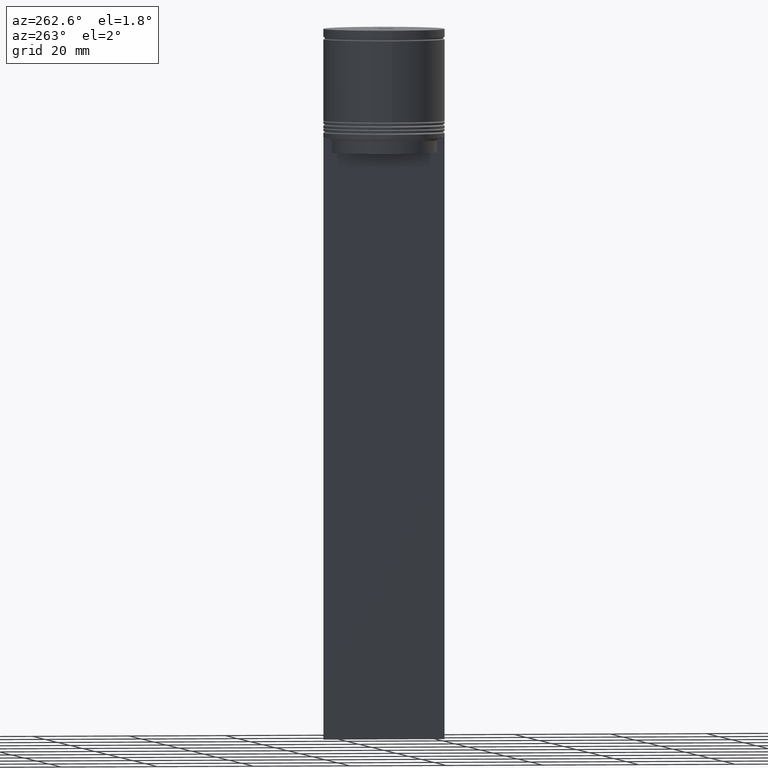
[diagram: clean part render]
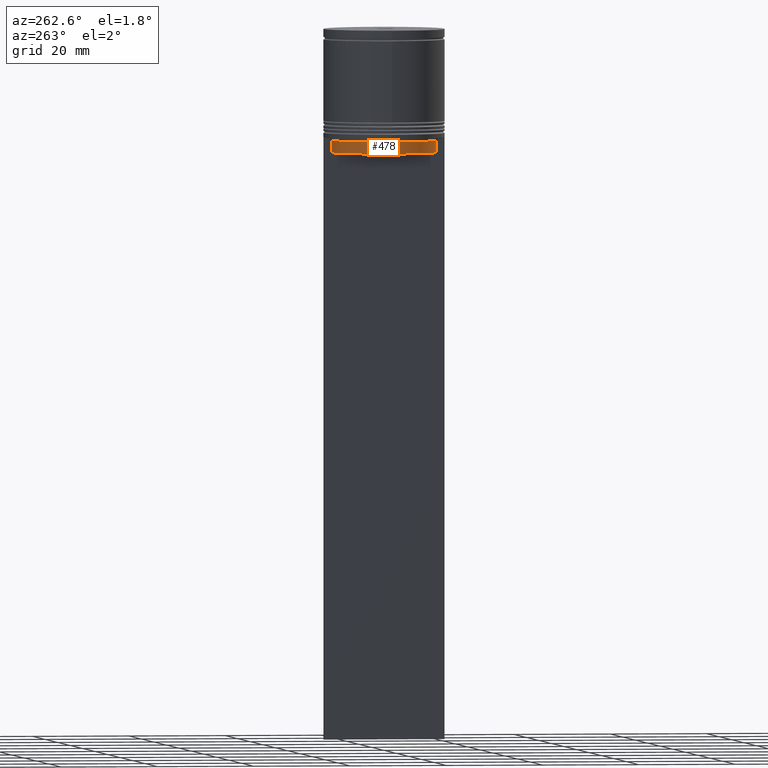
[diagram: same view with one face highlighted and labeled with its STEP entity id]
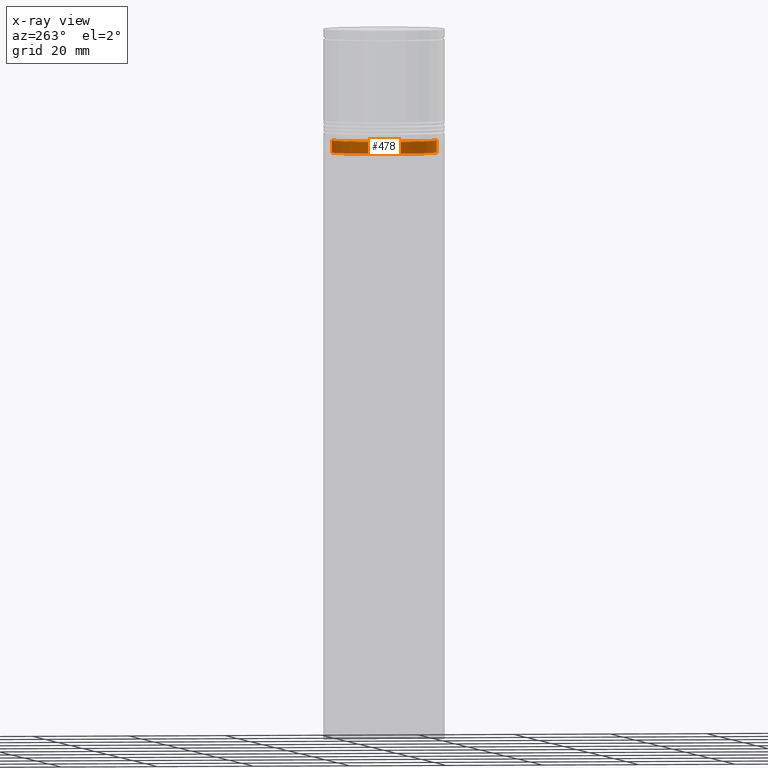
[diagram: x-ray of the same camera — body ghosted, the highlighted face saturated]
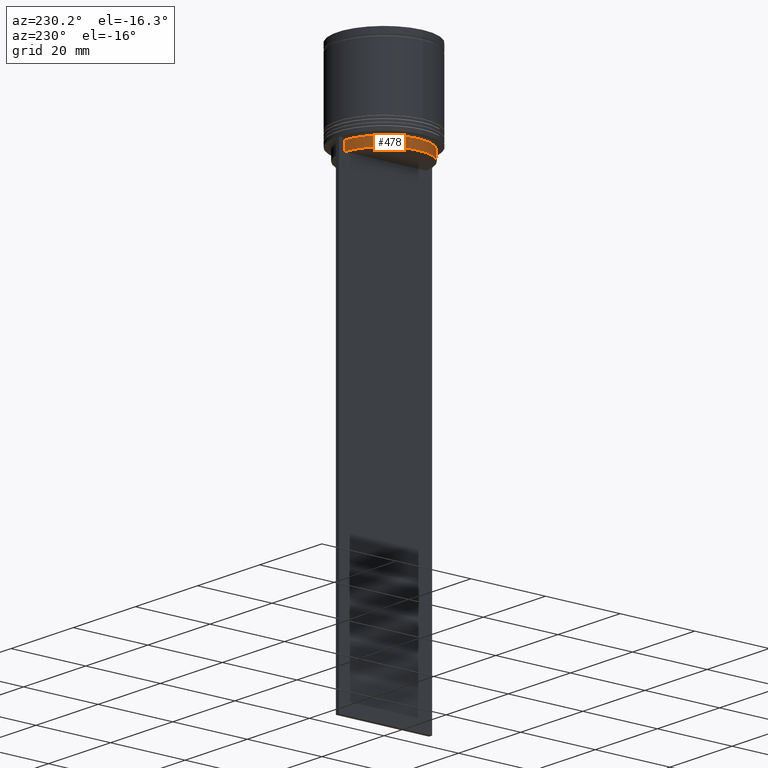
[diagram: same view with one face highlighted and labeled with its STEP entity id]
A machine part, auxiliary view. The second image highlights one B-rep face of the part: STEP entity #478.
The next image is the same camera in x-ray: the body ghosted, the highlighted face saturated — about 0% of this face is hidden behind the body in this view.
A second angle (auxiliary view) of the same face is appended — the face is thin or edge-on in the first view.
In plain terms, the highlighted cylindrical surface (partial cylindrical patch) has radius 10.9 mm, axis along (-0, -0, 1).
Its self-contained STEP definition (entity closure, byte-faithful):
#3 = FACE_OUTER_BOUND ( 'NONE', #2027, .T. ) ;
#8 = VERTEX_POINT ( 'NONE', #781 ) ;
#16 = VECTOR ( 'NONE', #1438, 1000.000000000000000 ) ;
#105 = DIRECTION ( 'NONE',  ( 1.000000000000000000, 0.000000000000000000, 0.000000000000000000 ) ) ;
#169 = CARTESIAN_POINT ( 'NONE',  ( 0.000000000000000000, 0.000000000000000000, 0.000000000000000000 ) ) ;
#232 = DIRECTION ( 'NONE',  ( -0.000000000000000000, -0.000000000000000000, 1.000000000000000000 ) ) ;
#269 = CARTESIAN_POINT ( 'NONE',  ( -0.5000000000000000000, -10.88852607105296855, -25.50000000000000000 ) ) ;
#271 = CARTESIAN_POINT ( 'NONE',  ( -0.5000000000000000000, -10.88852607105297032, 0.000000000000000000 ) ) ;
#370 = CARTESIAN_POINT ( 'NONE',  ( -0.5000000000000000000, 10.88852607105297032, -22.99999999999999645 ) ) ;
#407 = EDGE_CURVE ( 'NONE', #1100, #615, #1557, .T. ) ;
#478 = ADVANCED_FACE ( 'NONE', ( #3 ), #645, .T. ) ;
#525 = DIRECTION ( 'NONE',  ( -0.000000000000000000, -0.000000000000000000, 1.000000000000000000 ) ) ;
#538 = ORIENTED_EDGE ( 'NONE', *, *, #1077, .T. ) ;
#615 = VERTEX_POINT ( 'NONE', #1038 ) ;
#630 = VECTOR ( 'NONE', #232, 1000.000000000000000 ) ;
#645 = CYLINDRICAL_SURFACE ( 'NONE', #1841, 10.90000000000001101 ) ;
#649 = EDGE_CURVE ( 'NONE', #615, #1573, #1202, .T. ) ;
#659 = AXIS2_PLACEMENT_3D ( 'NONE', #1977, #525, #1523 ) ;
#781 = CARTESIAN_POINT ( 'NONE',  ( -0.5000000000000000000, -10.88852607105297032, -22.99999999999999645 ) ) ;
#818 = DIRECTION ( 'NONE',  ( 1.000000000000000000, 0.000000000000000000, 0.000000000000000000 ) ) ;
#875 = CIRCLE ( 'NONE', #1883, 10.90000000000001101 ) ;
#994 = ORIENTED_EDGE ( 'NONE', *, *, #1998, .F. ) ;
#1038 = CARTESIAN_POINT ( 'NONE',  ( -0.5000000000000000000, 10.88852607105296855, -25.50000000000000000 ) ) ;
#1044 = ORIENTED_EDGE ( 'NONE', *, *, #649, .T. ) ;
#1077 = EDGE_CURVE ( 'NONE', #1573, #8, #1388, .T. ) ;
#1086 = CARTESIAN_POINT ( 'NONE',  ( 0.000000000000000000, 0.000000000000000000, -22.99999999999999645 ) ) ;
#1100 = VERTEX_POINT ( 'NONE', #370 ) ;
#1202 = CIRCLE ( 'NONE', #659, 10.90000000000000924 ) ;
#1388 = LINE ( 'NONE', #271, #630 ) ;
#1391 = DIRECTION ( 'NONE',  ( -0.000000000000000000, -0.000000000000000000, 1.000000000000000000 ) ) ;
#1438 = DIRECTION ( 'NONE',  ( 0.000000000000000000, 0.000000000000000000, -1.000000000000000000 ) ) ;
#1523 = DIRECTION ( 'NONE',  ( 1.000000000000000000, 0.000000000000000000, 0.000000000000000000 ) ) ;
#1557 = LINE ( 'NONE', #1886, #16 ) ;
#1573 = VERTEX_POINT ( 'NONE', #269 ) ;
#1610 = DIRECTION ( 'NONE',  ( -0.000000000000000000, -0.000000000000000000, 1.000000000000000000 ) ) ;
#1841 = AXIS2_PLACEMENT_3D ( 'NONE', #169, #1610, #818 ) ;
#1883 = AXIS2_PLACEMENT_3D ( 'NONE', #1086, #1391, #105 ) ;
#1886 = CARTESIAN_POINT ( 'NONE',  ( -0.5000000000000000000, 10.88852607105297032, 0.000000000000000000 ) ) ;
#1941 = ORIENTED_EDGE ( 'NONE', *, *, #407, .T. ) ;
#1977 = CARTESIAN_POINT ( 'NONE',  ( 0.000000000000000000, 0.000000000000000000, -25.50000000000000000 ) ) ;
#1998 = EDGE_CURVE ( 'NONE', #1100, #8, #875, .T. ) ;
#2027 = EDGE_LOOP ( 'NONE', ( #1044, #538, #994, #1941 ) ) ;